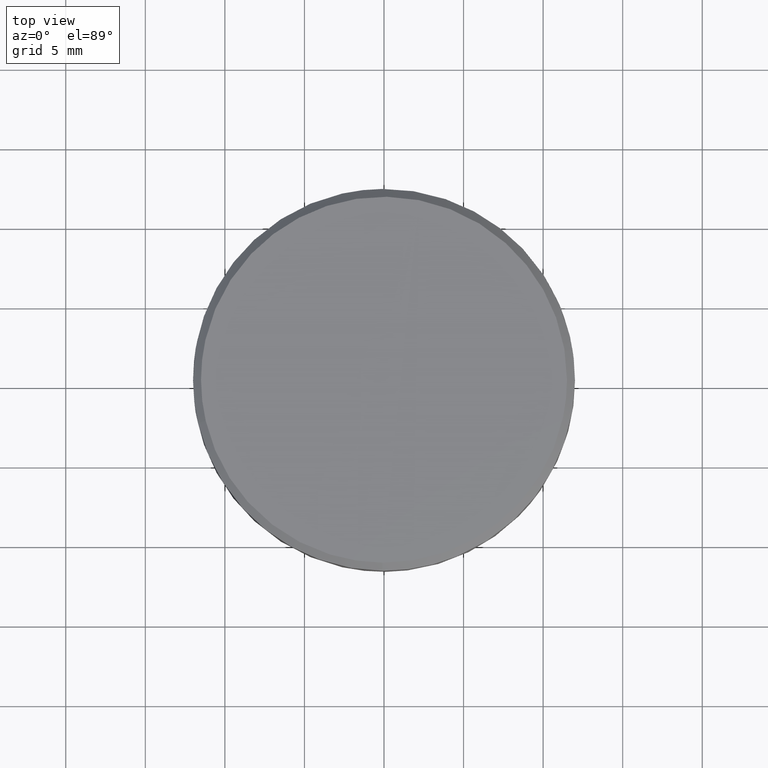
[diagram: clean part render]
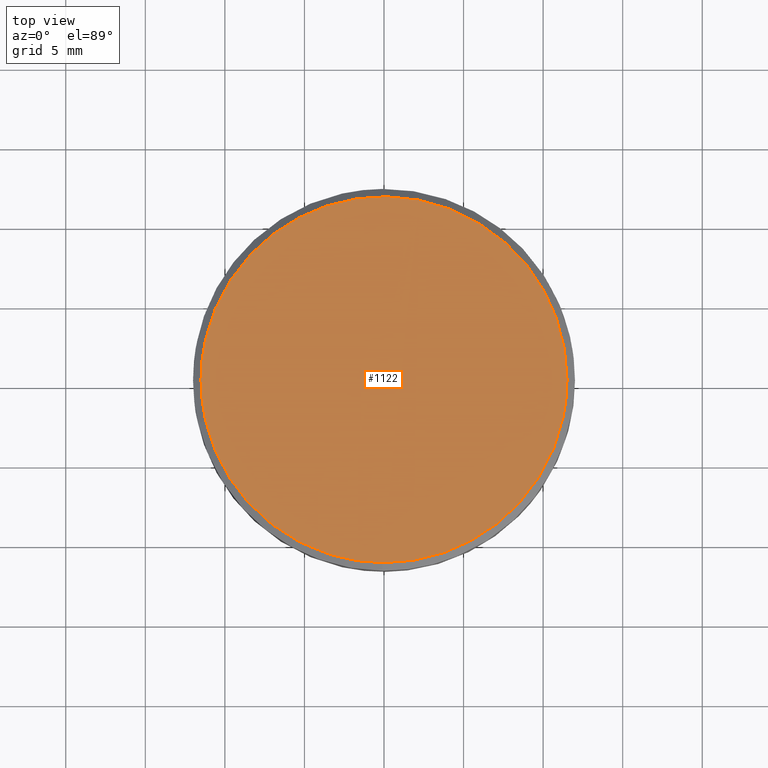
[diagram: same view with one face highlighted and labeled with its STEP entity id]
A machine part, top view. The second image highlights one B-rep face of the part: STEP entity #1122.
In plain terms, the highlighted face is a freeform B-spline surface patch.
Its self-contained STEP definition (entity closure, byte-faithful):
#87=CARTESIAN_POINT('',(-11.203508761552721,-2.594492518747375,14.999999999998900));
#88=VERTEX_POINT('',#87);
#94=CARTESIAN_POINT('',(-11.500000000000000,0.0,15.0));
#95=VERTEX_POINT('',#94);
#96=CARTESIAN_POINT('',(-11.500000000000000,0.0,15.0));
#97=CARTESIAN_POINT('',(-11.500000000000000,-1.314187347826537,15.000000000000002));
#98=CARTESIAN_POINT('',(-11.203508761552717,-2.594492518747375,14.999999999998893));
#106=(BOUNDED_CURVE()B_SPLINE_CURVE(2,(#96,#97,#98),.UNSPECIFIED.,.F.,.U.)B_SPLINE_CURVE_WITH_KNOTS((3,3),(0.500000000000000,0.538577028215658),.UNSPECIFIED.)CURVE()GEOMETRIC_REPRESENTATION_ITEM()RATIONAL_B_SPLINE_CURVE((1.0,0.954804200134634,0.923556557442351))REPRESENTATION_ITEM(''));
#107=EDGE_CURVE('',#95,#88,#106,.T.);
#109=CARTESIAN_POINT('',(11.500000000000000,0.0,15.0));
#110=VERTEX_POINT('',#109);
#111=CARTESIAN_POINT('',(11.500000000000000,0.0,15.0));
#112=CARTESIAN_POINT('',(11.500000000000000,11.500000000000000,14.999999999999995));
#113=CARTESIAN_POINT('',(0.0,11.500000000000000,15.0));
#114=CARTESIAN_POINT('',(-11.500000000000000,11.500000000000000,14.999999999999995));
#115=CARTESIAN_POINT('',(-11.500000000000000,0.0,15.0));
#123=(BOUNDED_CURVE()B_SPLINE_CURVE(2,(#111,#112,#113,#114,#115),.UNSPECIFIED.,.F.,.U.)B_SPLINE_CURVE_WITH_KNOTS((3,2,3),(0.0,0.250000000000000,0.500000000000000),.UNSPECIFIED.)CURVE()GEOMETRIC_REPRESENTATION_ITEM()RATIONAL_B_SPLINE_CURVE((1.0,0.707106781186548,1.0,0.707106781186548,1.0))REPRESENTATION_ITEM(''));
#124=EDGE_CURVE('',#110,#95,#123,.T.);
#126=CARTESIAN_POINT('',(-0.100355158261187,-11.499562115241760,14.999999999995920));
#127=VERTEX_POINT('',#126);
#128=CARTESIAN_POINT('',(-0.100355158261186,-11.499562115241762,14.999999999995925));
#129=CARTESIAN_POINT('',(-0.050178534467922,-11.500000000000004,15.0));
#130=CARTESIAN_POINT('',(0.0,-11.500000000000000,15.0));
#131=CARTESIAN_POINT('',(11.500000000000000,-11.500000000000000,14.999999999999995));
#132=CARTESIAN_POINT('',(11.500000000000000,0.0,15.0));
#140=(BOUNDED_CURVE()B_SPLINE_CURVE(2,(#128,#129,#130,#131,#132),.UNSPECIFIED.,.F.,.U.)B_SPLINE_CURVE_WITH_KNOTS((3,2,3),(0.748460105664098,0.750000000000000,1.0),.UNSPECIFIED.)CURVE()GEOMETRIC_REPRESENTATION_ITEM()RATIONAL_B_SPLINE_CURVE((0.996414028098289,0.998195901565301,1.0,0.707106781186548,1.0))REPRESENTATION_ITEM(''));
#141=EDGE_CURVE('',#127,#110,#140,.T.);
#243=CARTESIAN_POINT('',(-11.203508761552726,-2.594492518747375,14.999999999998904));
#244=CARTESIAN_POINT('',(-9.159593812562731,-11.420503337169698,14.999999999999993));
#245=CARTESIAN_POINT('',(-0.100355158261186,-11.499562115241767,14.999999999995921));
#253=(BOUNDED_CURVE()B_SPLINE_CURVE(2,(#243,#244,#245),.UNSPECIFIED.,.F.,.U.)B_SPLINE_CURVE_WITH_KNOTS((3,3),(0.538577028215659,0.748460105664099),.UNSPECIFIED.)CURVE()GEOMETRIC_REPRESENTATION_ITEM()RATIONAL_B_SPLINE_CURVE((0.923556557442351,0.753549905436859,0.996414028098292))REPRESENTATION_ITEM(''));
#254=EDGE_CURVE('',#88,#127,#253,.T.);
#1111=CARTESIAN_POINT('',(-12.648849955421539,-12.648390504168130,15.0));
#1112=CARTESIAN_POINT('',(12.648850572329611,-12.648390504168130,15.0));
#1113=CARTESIAN_POINT('',(-12.648849955421539,12.648828714536281,15.0));
#1114=CARTESIAN_POINT('',(12.648850572329611,12.648828714536281,15.0));
#1115=B_SPLINE_SURFACE_WITH_KNOTS('',1,1,((#1111,#1113),(#1112,#1114)),.UNSPECIFIED.,.F.,.F.,.U.,(2,2),(2,2),(0.0,25.297700527751150),(0.0,25.297219218704409),.UNSPECIFIED.);
#1116=ORIENTED_EDGE('',*,*,#124,.T.);
#1117=ORIENTED_EDGE('',*,*,#107,.T.);
#1118=ORIENTED_EDGE('',*,*,#254,.T.);
#1119=ORIENTED_EDGE('',*,*,#141,.T.);
#1120=EDGE_LOOP('',(#1116,#1117,#1118,#1119));
#1121=FACE_OUTER_BOUND('',#1120,.T.);
#1122=ADVANCED_FACE('',(#1121),#1115,.T.);